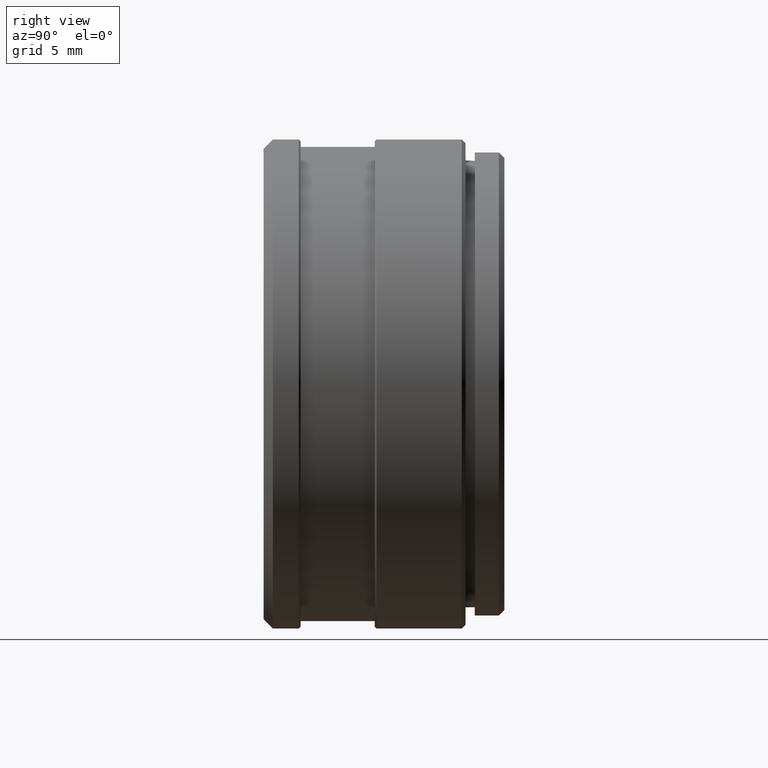
[diagram: clean part render]
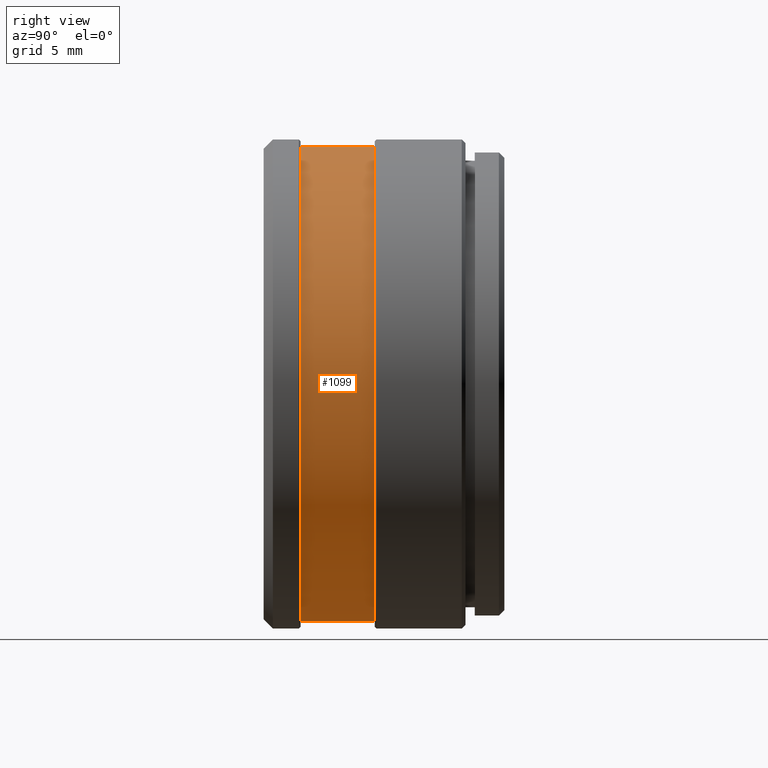
[diagram: same view with one face highlighted and labeled with its STEP entity id]
A machine part, right view. The second image highlights one B-rep face of the part: STEP entity #1099.
In plain terms, the highlighted cylindrical surface (partial cylindrical patch) has radius 12.8 mm, axis along (-0, -1, -0).
Its self-contained STEP definition (entity closure, byte-faithful):
#74 = ORIENTED_EDGE ( 'NONE', *, *, #811, .T. ) ;
#75 = CARTESIAN_POINT ( 'NONE',  ( 1.567547902896493900E-015, -5.278745474983225000, 12.79999999990104700 ) ) ;
#81 = VERTEX_POINT ( 'NONE', #955 ) ;
#86 = DIRECTION ( 'NONE',  ( -0.0000000000000000000, -1.000000000000000000, -0.0000000000000000000 ) ) ;
#87 = VECTOR ( 'NONE', #986, 1000.000000000000000 ) ;
#137 = CARTESIAN_POINT ( 'NONE',  ( 0.0000000000000000000, -5.278745474983225000, 0.0000000000000000000 ) ) ;
#139 = LINE ( 'NONE', #691, #834 ) ;
#146 = AXIS2_PLACEMENT_3D ( 'NONE', #492, #839, #1195 ) ;
#189 = DIRECTION ( 'NONE',  ( 0.0000000000000000000, 0.0000000000000000000, -1.000000000000000000 ) ) ;
#282 = DIRECTION ( 'NONE',  ( -0.0000000000000000000, -1.000000000000000000, -0.0000000000000000000 ) ) ;
#333 = CIRCLE ( 'NONE', #146, 12.79999999990104700 ) ;
#385 = DIRECTION ( 'NONE',  ( -0.0000000000000000000, -1.000000000000000000, -0.0000000000000000000 ) ) ;
#415 = DIRECTION ( 'NONE',  ( 0.0000000000000000000, 0.0000000000000000000, -1.000000000000000000 ) ) ;
#461 = ORIENTED_EDGE ( 'NONE', *, *, #500, .F. ) ;
#492 = CARTESIAN_POINT ( 'NONE',  ( 0.0000000000000000000, 6.000000001498847300, 0.0000000000000000000 ) ) ;
#500 = EDGE_CURVE ( 'NONE', #81, #974, #139, .T. ) ;
#534 = AXIS2_PLACEMENT_3D ( 'NONE', #656, #282, #415 ) ;
#656 = CARTESIAN_POINT ( 'NONE',  ( 0.0000000000000000000, 2.000000000502041100, 0.0000000000000000000 ) ) ;
#691 = CARTESIAN_POINT ( 'NONE',  ( 0.0000000000000000000, -5.278745474983225000, -12.79999999990104700 ) ) ;
#723 = CIRCLE ( 'NONE', #534, 12.79999999990104700 ) ;
#740 = CARTESIAN_POINT ( 'NONE',  ( 1.567547902896493900E-015, 2.000000000502041100, 12.79999999990104700 ) ) ;
#811 = EDGE_CURVE ( 'NONE', #901, #917, #1189, .T. ) ;
#834 = VECTOR ( 'NONE', #385, 1000.000000000000000 ) ;
#839 = DIRECTION ( 'NONE',  ( -0.0000000000000000000, -1.000000000000000000, -0.0000000000000000000 ) ) ;
#901 = VERTEX_POINT ( 'NONE', #1032 ) ;
#917 = VERTEX_POINT ( 'NONE', #740 ) ;
#949 = ORIENTED_EDGE ( 'NONE', *, *, #1163, .T. ) ;
#955 = CARTESIAN_POINT ( 'NONE',  ( 0.0000000000000000000, 6.000000001498847300, -12.79999999990104700 ) ) ;
#956 = AXIS2_PLACEMENT_3D ( 'NONE', #137, #86, #189 ) ;
#974 = VERTEX_POINT ( 'NONE', #1115 ) ;
#986 = DIRECTION ( 'NONE',  ( -0.0000000000000000000, -1.000000000000000000, -0.0000000000000000000 ) ) ;
#995 = ORIENTED_EDGE ( 'NONE', *, *, #1017, .F. ) ;
#1017 = EDGE_CURVE ( 'NONE', #974, #917, #723, .T. ) ;
#1032 = CARTESIAN_POINT ( 'NONE',  ( 1.567547902896493900E-015, 6.000000001498847300, 12.79999999990104700 ) ) ;
#1078 = CYLINDRICAL_SURFACE ( 'NONE', #956, 12.79999999990104700 ) ;
#1092 = FACE_OUTER_BOUND ( 'NONE', #1153, .T. ) ;
#1099 = ADVANCED_FACE ( 'NONE', ( #1092 ), #1078, .T. ) ;
#1115 = CARTESIAN_POINT ( 'NONE',  ( 0.0000000000000000000, 2.000000000502041100, -12.79999999990104700 ) ) ;
#1153 = EDGE_LOOP ( 'NONE', ( #949, #74, #995, #461 ) ) ;
#1163 = EDGE_CURVE ( 'NONE', #81, #901, #333, .T. ) ;
#1189 = LINE ( 'NONE', #75, #87 ) ;
#1195 = DIRECTION ( 'NONE',  ( 0.0000000000000000000, 0.0000000000000000000, -1.000000000000000000 ) ) ;